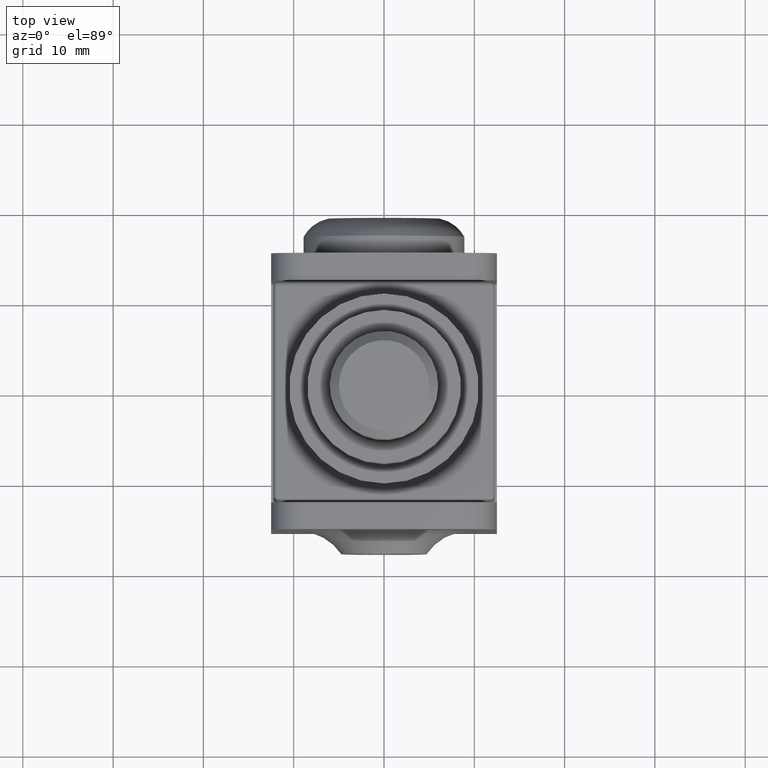
[diagram: clean part render]
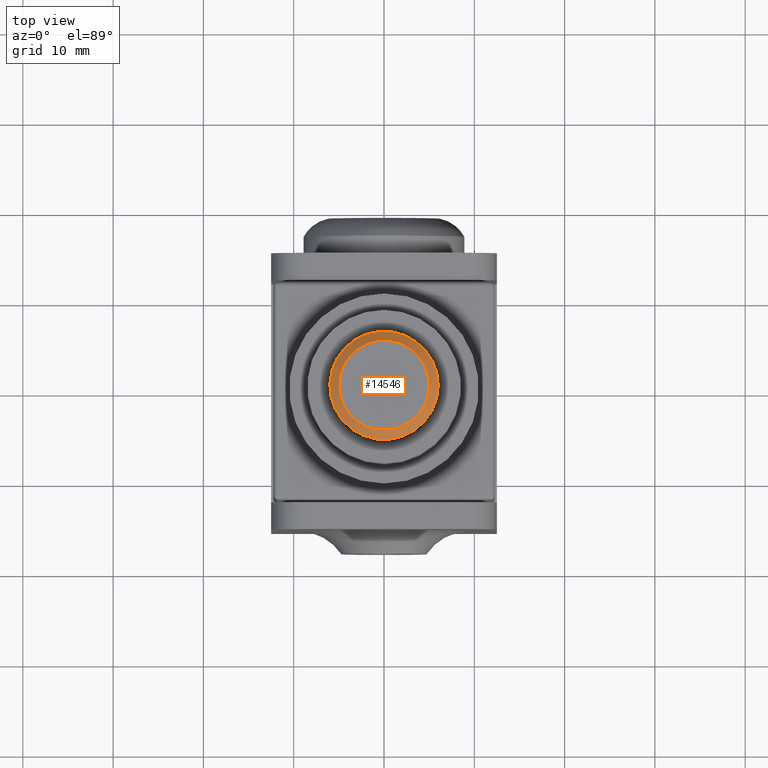
[diagram: same view with one face highlighted and labeled with its STEP entity id]
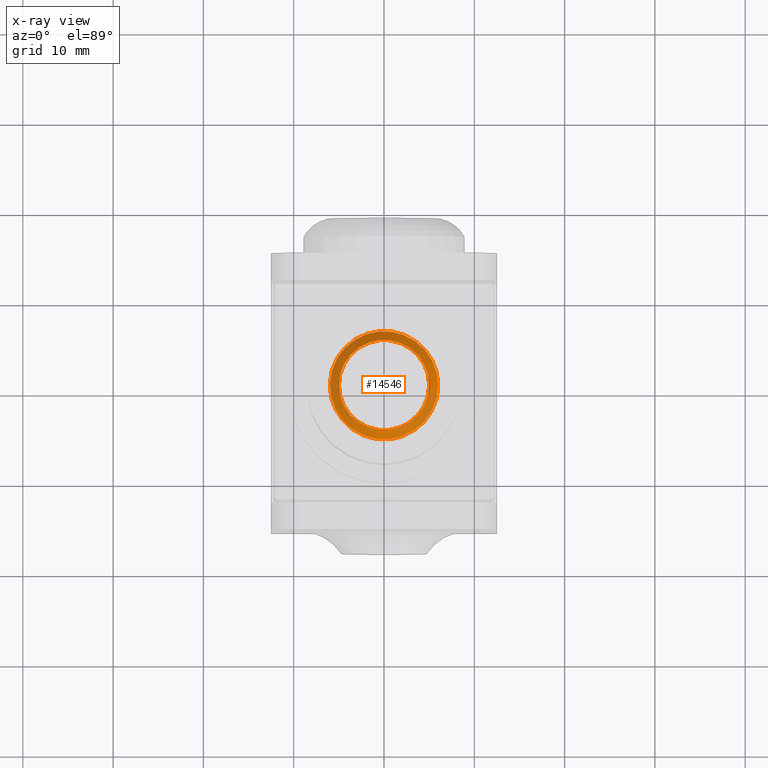
[diagram: x-ray of the same camera — body ghosted, the highlighted face saturated]
A machine part, top view. The second image highlights one B-rep face of the part: STEP entity #14546.
The next image is the same camera in x-ray: the body ghosted, the highlighted face saturated — about 0% of this face is hidden behind the body in this view.
In plain terms, the highlighted conical surface has half-angle 45 deg.
Its self-contained STEP definition (entity closure, byte-faithful):
#426 = FACE_OUTER_BOUND ( 'NONE', #7281, .T. ) ;
#449 = CARTESIAN_POINT ( 'NONE',  ( 4.999999999999996447, 0.000000000000000000, 45.90000000000000568 ) ) ;
#2159 = AXIS2_PLACEMENT_3D ( 'NONE', #5628, #10484, #6930 ) ;
#2353 = AXIS2_PLACEMENT_3D ( 'NONE', #12377, #13728, #9037 ) ;
#2541 = EDGE_LOOP ( 'NONE', ( #8870 ) ) ;
#3093 = DIRECTION ( 'NONE',  ( 0.000000000000000000, 0.000000000000000000, 1.000000000000000000 ) ) ;
#5628 = CARTESIAN_POINT ( 'NONE',  ( -8.071774541279841801E-16, 0.000000000000000000, 45.90000000000000568 ) ) ;
#5891 = CIRCLE ( 'NONE', #10451, 4.999999999999997335 ) ;
#6930 = DIRECTION ( 'NONE',  ( -1.000000000000000000, 0.000000000000000000, 0.000000000000000000 ) ) ;
#7281 = EDGE_LOOP ( 'NONE', ( #8598 ) ) ;
#7695 = FACE_BOUND ( 'NONE', #2541, .T. ) ;
#8591 = VERTEX_POINT ( 'NONE', #449 ) ;
#8598 = ORIENTED_EDGE ( 'NONE', *, *, #14686, .F. ) ;
#8748 = CARTESIAN_POINT ( 'NONE',  ( 6.000000000000000000, 0.000000000000000000, 44.90000000000000568 ) ) ;
#8870 = ORIENTED_EDGE ( 'NONE', *, *, #9857, .F. ) ;
#9028 = CARTESIAN_POINT ( 'NONE',  ( -8.071774541279841801E-16, 0.000000000000000000, 45.90000000000000568 ) ) ;
#9037 = DIRECTION ( 'NONE',  ( 1.000000000000000000, 0.000000000000000000, 0.000000000000000000 ) ) ;
#9857 = EDGE_CURVE ( 'NONE', #8591, #8591, #5891, .T. ) ;
#10319 = CIRCLE ( 'NONE', #2353, 6.000000000000000888 ) ;
#10451 = AXIS2_PLACEMENT_3D ( 'NONE', #9028, #3093, #11414 ) ;
#10484 = DIRECTION ( 'NONE',  ( 0.000000000000000000, 0.000000000000000000, -1.000000000000000000 ) ) ;
#11414 = DIRECTION ( 'NONE',  ( 1.000000000000000000, 0.000000000000000000, 0.000000000000000000 ) ) ;
#12377 = CARTESIAN_POINT ( 'NONE',  ( -8.071774541279841801E-16, 0.000000000000000000, 44.90000000000000568 ) ) ;
#13728 = DIRECTION ( 'NONE',  ( 0.000000000000000000, 0.000000000000000000, -1.000000000000000000 ) ) ;
#14546 = ADVANCED_FACE ( 'NONE', ( #426, #7695 ), #15354, .T. ) ;
#14686 = EDGE_CURVE ( 'NONE', #14899, #14899, #10319, .T. ) ;
#14899 = VERTEX_POINT ( 'NONE', #8748 ) ;
#15354 = CONICAL_SURFACE ( 'NONE', #2159, 4.999999999999997335, 0.7853981633974496113 ) ;